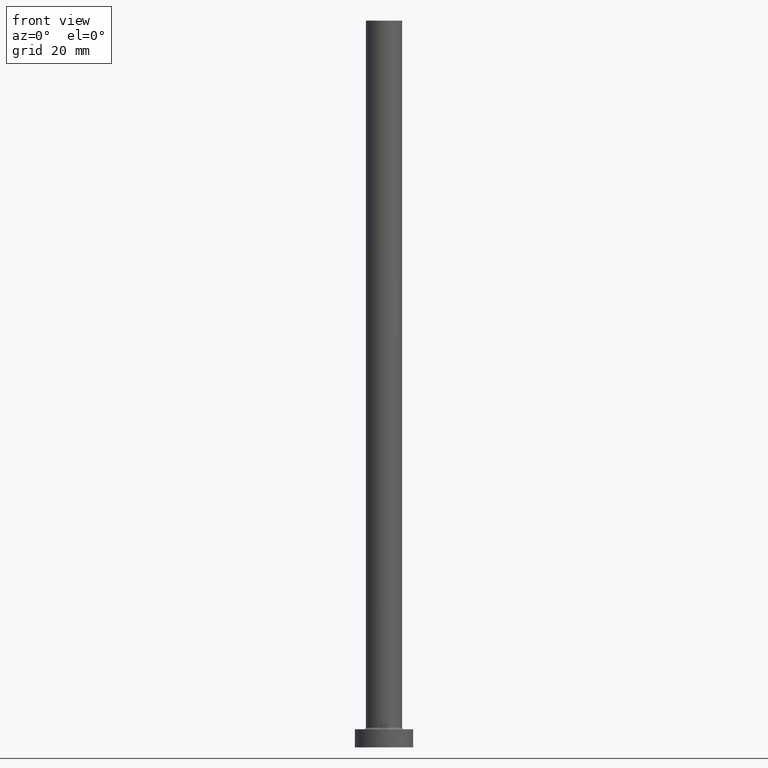
[diagram: clean part render]
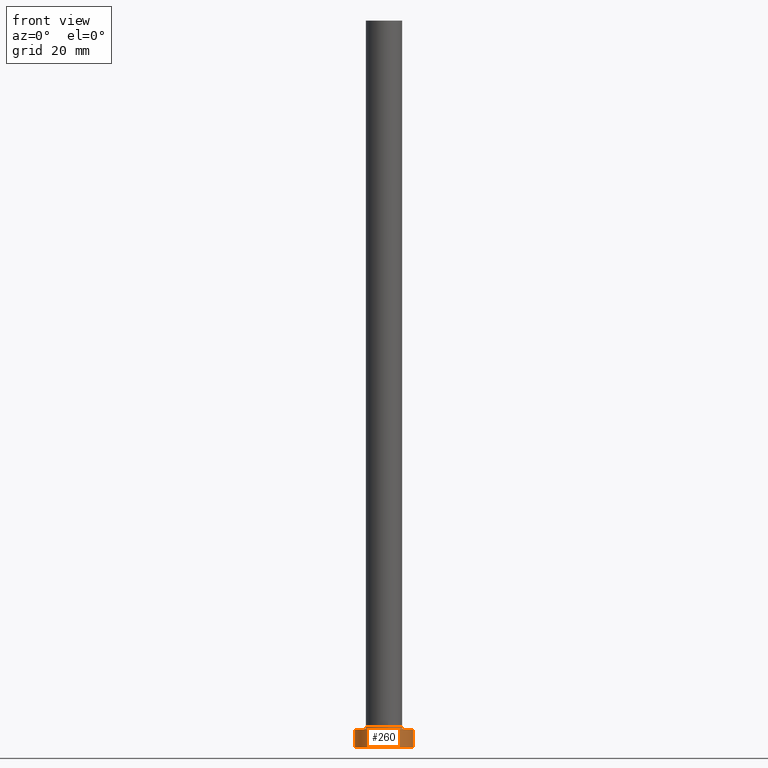
[diagram: same view with one face highlighted and labeled with its STEP entity id]
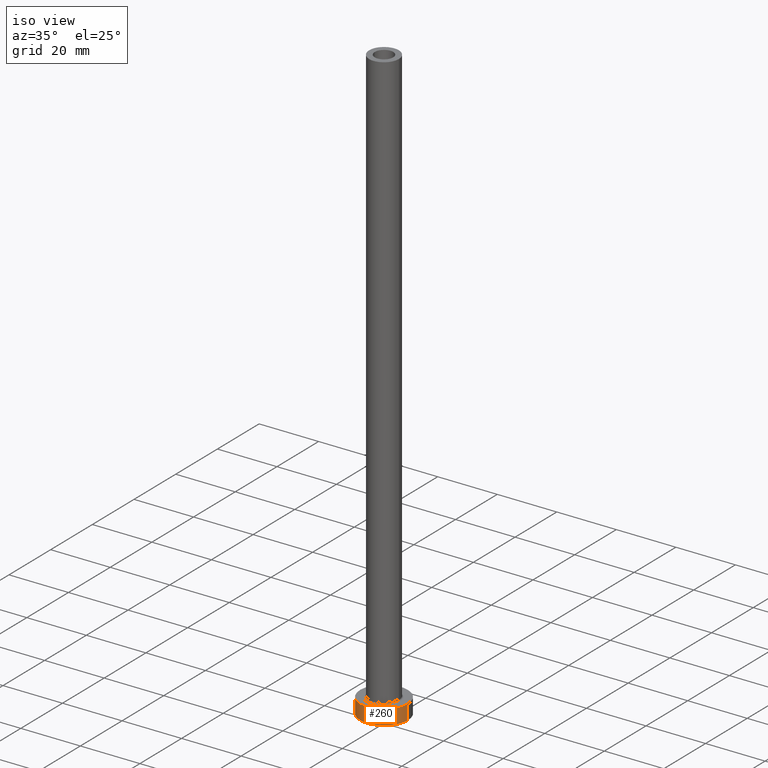
[diagram: same view with one face highlighted and labeled with its STEP entity id]
A machine part, front view. The second image highlights one B-rep face of the part: STEP entity #260.
A second angle (iso view) of the same face is appended — the face is thin or edge-on in the first view.
In plain terms, the highlighted cylindrical surface (edge-blend (fillet) strip) has radius 8 mm, axis along (-0, -0, -1).
Its self-contained STEP definition (entity closure, byte-faithful):
#18 = CARTESIAN_POINT ( 'NONE',  ( -8.000000000000000000, 0.000000000000000000, 0.000000000000000000 ) ) ;
#22 = DIRECTION ( 'NONE',  ( 0.000000000000000000, 0.000000000000000000, 1.000000000000000000 ) ) ;
#42 = EDGE_LOOP ( 'NONE', ( #399, #76, #254, #351 ) ) ;
#55 = VERTEX_POINT ( 'NONE', #447 ) ;
#58 = DIRECTION ( 'NONE',  ( -0.000000000000000000, -0.000000000000000000, -1.000000000000000000 ) ) ;
#63 = DIRECTION ( 'NONE',  ( 0.000000000000000000, 0.000000000000000000, 1.000000000000000000 ) ) ;
#76 = ORIENTED_EDGE ( 'NONE', *, *, #440, .F. ) ;
#77 = CYLINDRICAL_SURFACE ( 'NONE', #355, 8.000000000000000000 ) ;
#80 = VECTOR ( 'NONE', #58, 1000.000000000000000 ) ;
#89 = AXIS2_PLACEMENT_3D ( 'NONE', #341, #22, #455 ) ;
#92 = CARTESIAN_POINT ( 'NONE',  ( 8.000000000000000000, 9.797174393178825657E-16, 5.000000000000000000 ) ) ;
#101 = CARTESIAN_POINT ( 'NONE',  ( 8.000000000000000000, 9.797174393178825657E-16, 5.000000000000000000 ) ) ;
#111 = FACE_OUTER_BOUND ( 'NONE', #42, .T. ) ;
#122 = EDGE_CURVE ( 'NONE', #55, #360, #304, .T. ) ;
#125 = CARTESIAN_POINT ( 'NONE',  ( 0.000000000000000000, 0.000000000000000000, 5.000000000000000000 ) ) ;
#130 = EDGE_CURVE ( 'NONE', #360, #142, #284, .T. ) ;
#142 = VERTEX_POINT ( 'NONE', #197 ) ;
#154 = EDGE_CURVE ( 'NONE', #369, #142, #274, .T. ) ;
#197 = CARTESIAN_POINT ( 'NONE',  ( 8.000000000000000000, 9.797174393178825657E-16, 0.000000000000000000 ) ) ;
#247 = AXIS2_PLACEMENT_3D ( 'NONE', #125, #63, #305 ) ;
#250 = DIRECTION ( 'NONE',  ( -0.000000000000000000, -0.000000000000000000, -1.000000000000000000 ) ) ;
#254 = ORIENTED_EDGE ( 'NONE', *, *, #122, .T. ) ;
#260 = ADVANCED_FACE ( 'NONE', ( #111 ), #77, .T. ) ;
#267 = CARTESIAN_POINT ( 'NONE',  ( -8.000000000000000000, 0.000000000000000000, 5.000000000000000000 ) ) ;
#272 = VECTOR ( 'NONE', #346, 1000.000000000000000 ) ;
#274 = LINE ( 'NONE', #101, #272 ) ;
#284 = CIRCLE ( 'NONE', #89, 8.000000000000000000 ) ;
#304 = LINE ( 'NONE', #267, #80 ) ;
#305 = DIRECTION ( 'NONE',  ( 1.000000000000000000, 0.000000000000000000, 0.000000000000000000 ) ) ;
#341 = CARTESIAN_POINT ( 'NONE',  ( 0.000000000000000000, 0.000000000000000000, 0.000000000000000000 ) ) ;
#346 = DIRECTION ( 'NONE',  ( -0.000000000000000000, -0.000000000000000000, -1.000000000000000000 ) ) ;
#351 = ORIENTED_EDGE ( 'NONE', *, *, #130, .T. ) ;
#355 = AXIS2_PLACEMENT_3D ( 'NONE', #396, #250, #398 ) ;
#360 = VERTEX_POINT ( 'NONE', #18 ) ;
#369 = VERTEX_POINT ( 'NONE', #92 ) ;
#396 = CARTESIAN_POINT ( 'NONE',  ( 0.000000000000000000, 0.000000000000000000, 5.000000000000000000 ) ) ;
#398 = DIRECTION ( 'NONE',  ( -1.000000000000000000, 0.000000000000000000, 0.000000000000000000 ) ) ;
#399 = ORIENTED_EDGE ( 'NONE', *, *, #154, .F. ) ;
#417 = CIRCLE ( 'NONE', #247, 8.000000000000000000 ) ;
#440 = EDGE_CURVE ( 'NONE', #55, #369, #417, .T. ) ;
#447 = CARTESIAN_POINT ( 'NONE',  ( -8.000000000000000000, 0.000000000000000000, 5.000000000000000000 ) ) ;
#455 = DIRECTION ( 'NONE',  ( 1.000000000000000000, 0.000000000000000000, 0.000000000000000000 ) ) ;